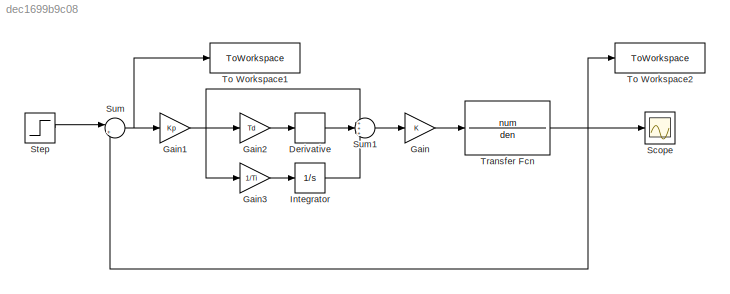
MODEL slx_dec1699b9c08
KIND model
CONFIG AbsTol = auto
CONFIG EnableMultiTasking = off
CONFIG FixedStep = timestep
CONFIG MaxStep = auto
CONFIG MinStep = auto
CONFIG RelTol = 1e-3
CONFIG SampleTimeConstraint = Unconstrained
CONFIG SolverName = FixedStepAuto
CONFIG StartTime = 0.0
CONFIG StopTime = t_max
BLOCK [Derivative] Derivative
BLOCK [Gain] Gain
  Gain = K
BLOCK [Gain] Gain1
  Gain = Kp
BLOCK [Gain] Gain2
  Gain = Td
BLOCK [Gain] Gain3
  Gain = 1/Ti
BLOCK [Integrator] Integrator
BLOCK [Scope] Scope
  Floating = off
  NumInputPorts = 1
  ScopeSpecificationString = Simulink.scopes.TimeScopeBlockCfg('CurrentConfiguration', extmgr.ConfigurationSet(extmgr.Configuration('Core','General UI',true),extmgr.Configuration('Core','Source UI',true),extmgr.Configuration('Sources','WiredSimulink',true),extmgr.Configuration('Visuals','Time Domain',true,'SerializedDisplays',{struct('MinYLimReal','-24295787300753318395709189161689776412690745873861039722825057145204868211852...<+2077ch>
BLOCK [Step] Step
  After = step_v
  SampleTime = 0
  Time = 0
BLOCK [Sum] Sum
  Inputs = |+-
BLOCK [Sum] Sum1
  Inputs = +++
BLOCK [ToWorkspace] To Workspace1
  FixptAsFi = on
  MaxDataPoints = inf
  SampleTime = -1
  VariableName = c_t
BLOCK [ToWorkspace] To Workspace2
  FixptAsFi = on
  MaxDataPoints = inf
  SampleTime = -1
  VariableName = out
BLOCK [TransferFcn] Transfer Fcn
  Denominator = den
  Numerator = num
LINE Derivative:1 -> Sum1:2
NET Gain1:1 -> Gain2:1, Gain3:1, Sum1:1
LINE Gain2:1 -> Derivative:1
LINE Gain3:1 -> Integrator:1
LINE Gain:1 -> Transfer Fcn:1
LINE Integrator:1 -> Sum1:3
LINE Step:1 -> Sum:1
LINE Sum1:1 -> Gain:1
NET Sum:1 -> Gain1:1, To Workspace1:1
NET Transfer Fcn:1 -> Scope:1, Sum:2, To Workspace2:1
note: NET lines group one-source signal fan-out (src -> all destinations, sorted); 1:1 wires keep LINE
